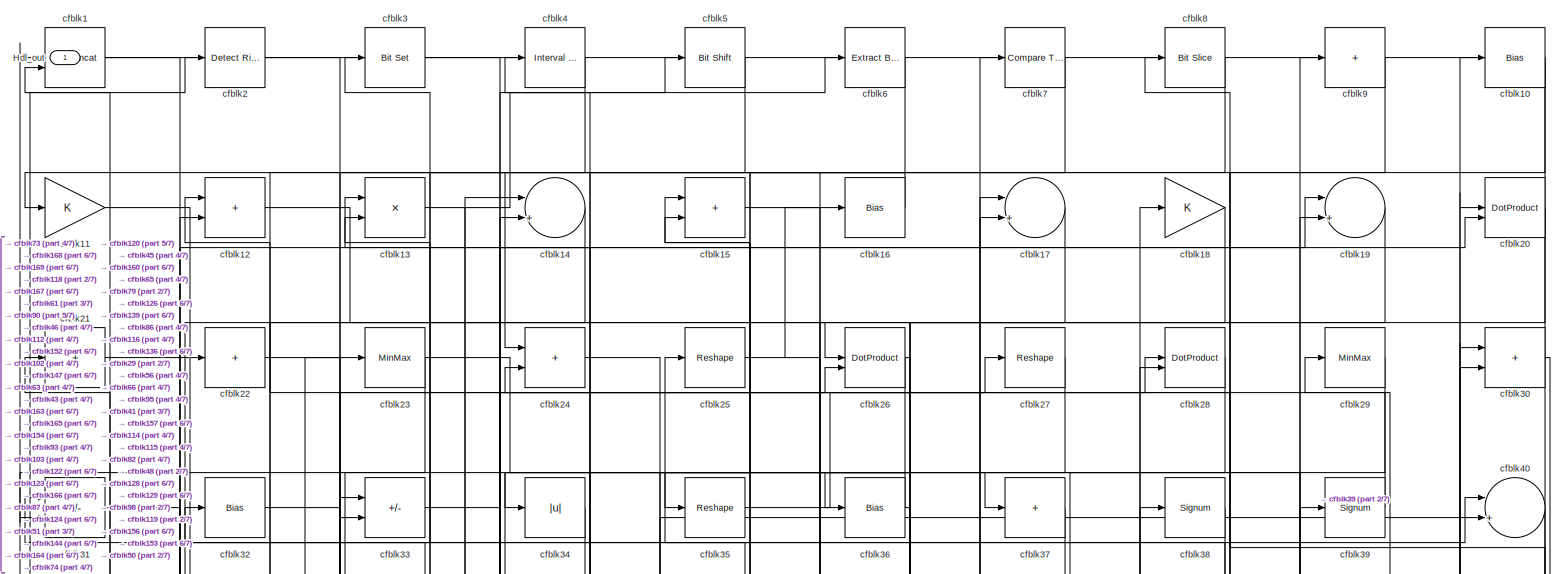
[diagram: root canvas - part 1/7, full width, top band]
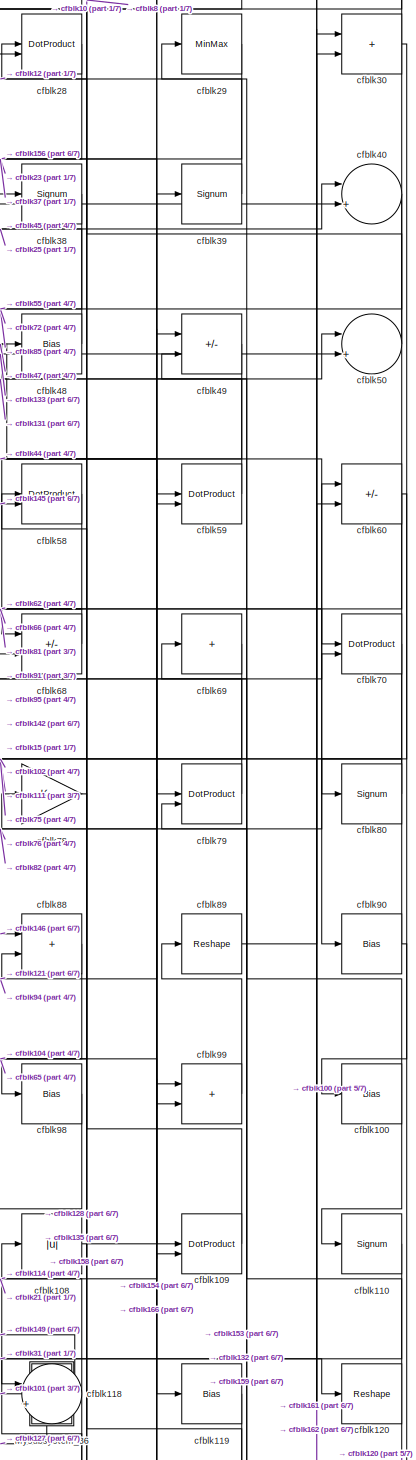
[diagram: root canvas - part 2/7, middle right region]
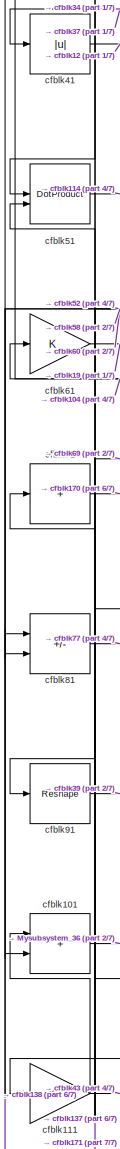
[diagram: root canvas - part 3/7, middle left region]
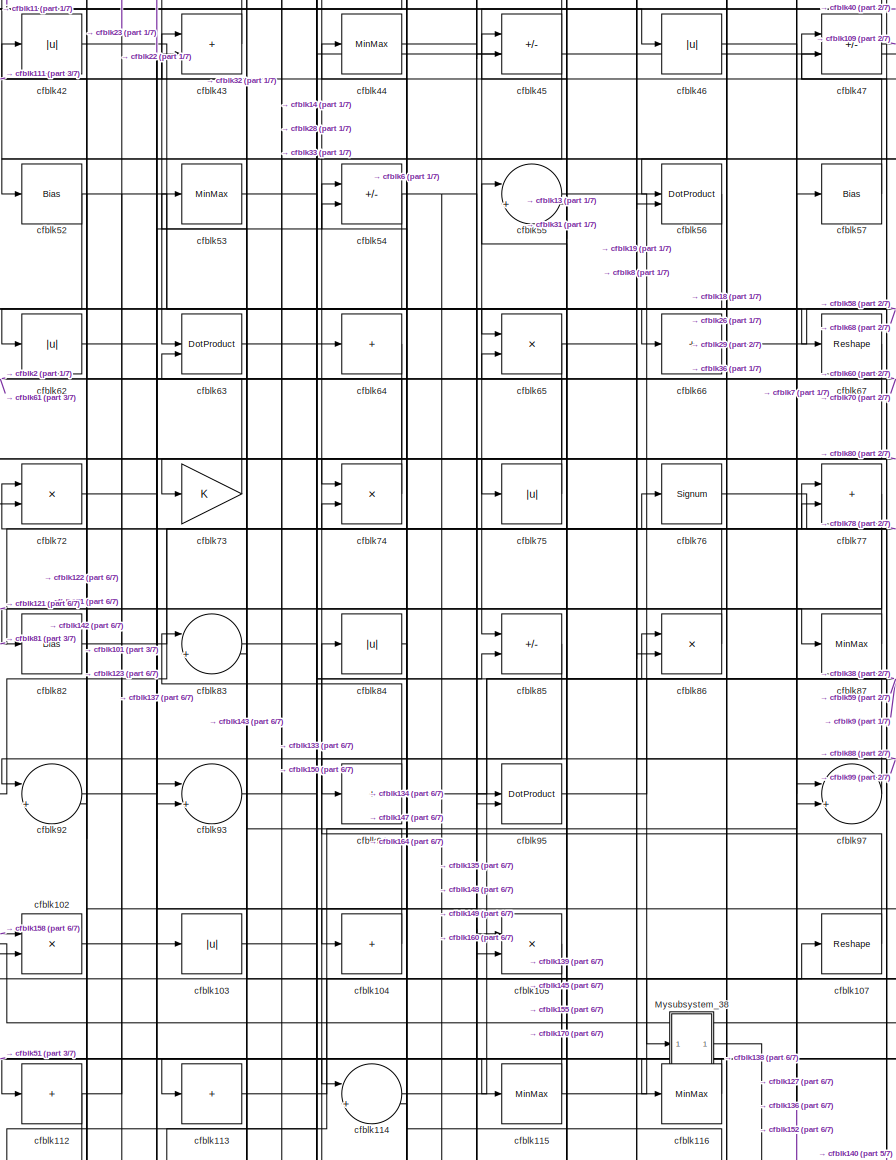
[diagram: root canvas - part 4/7, central region]
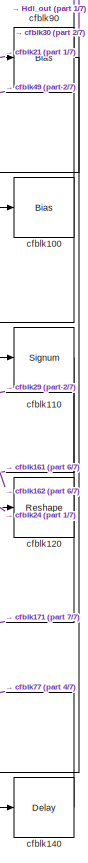
[diagram: root canvas - part 5/7, middle right region]
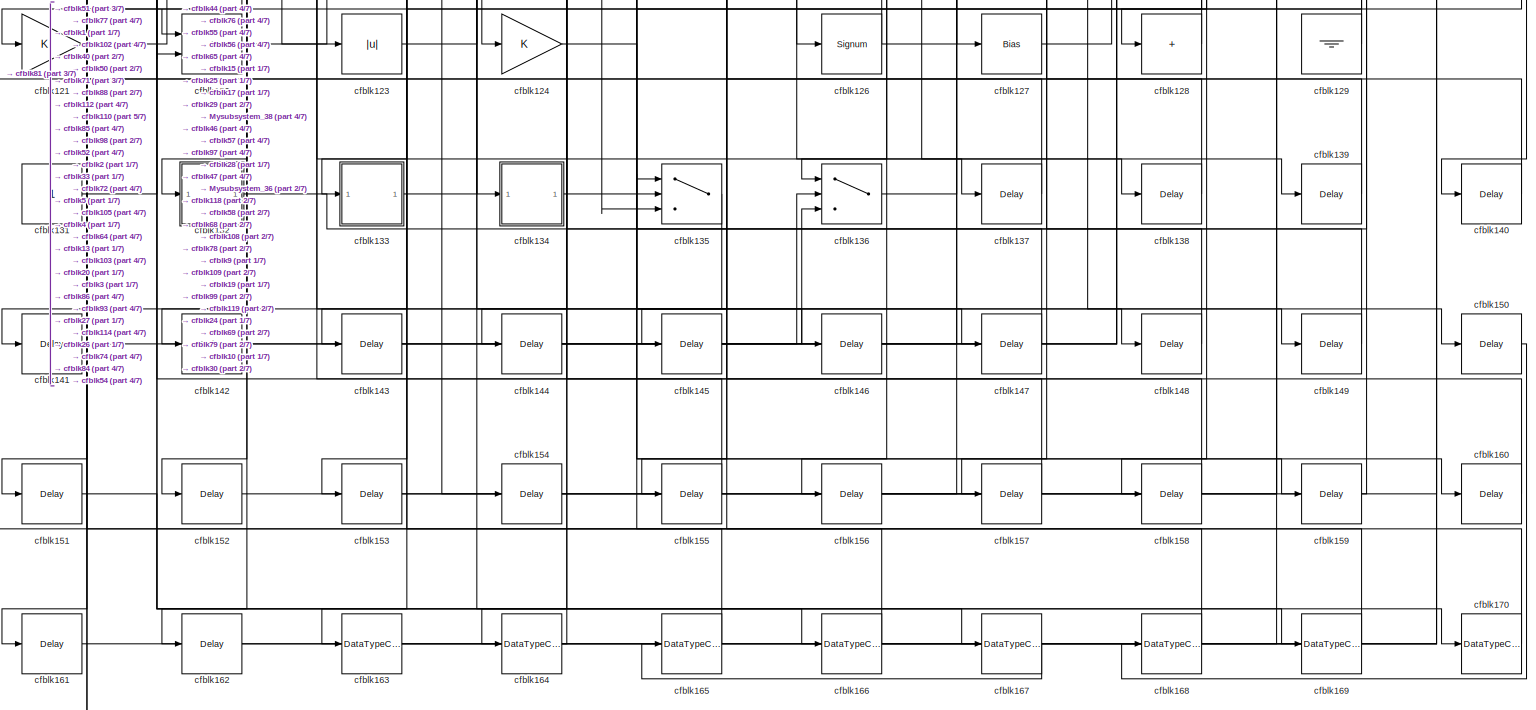
[diagram: root canvas - part 6/7, full width, bottom band]
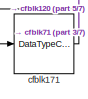
[diagram: root canvas - part 7/7, bottom left region]
MODEL slx_8a5f66f3ddb1
KIND model
CONFIG AbsTol = auto
CONFIG EnableMultiTasking = off
CONFIG FixedStep = auto
CONFIG MaxStep = auto
CONFIG MinStep = auto
CONFIG RelTol = 1e-3
CONFIG SampleTimeConstraint = Unconstrained
CONFIG SolverName = VariableStepAuto
CONFIG StartTime = 0.0
CONFIG StopTime = 10.0
BLOCK [Outport] Hdl_out
  OutDataTypeStr = uint8
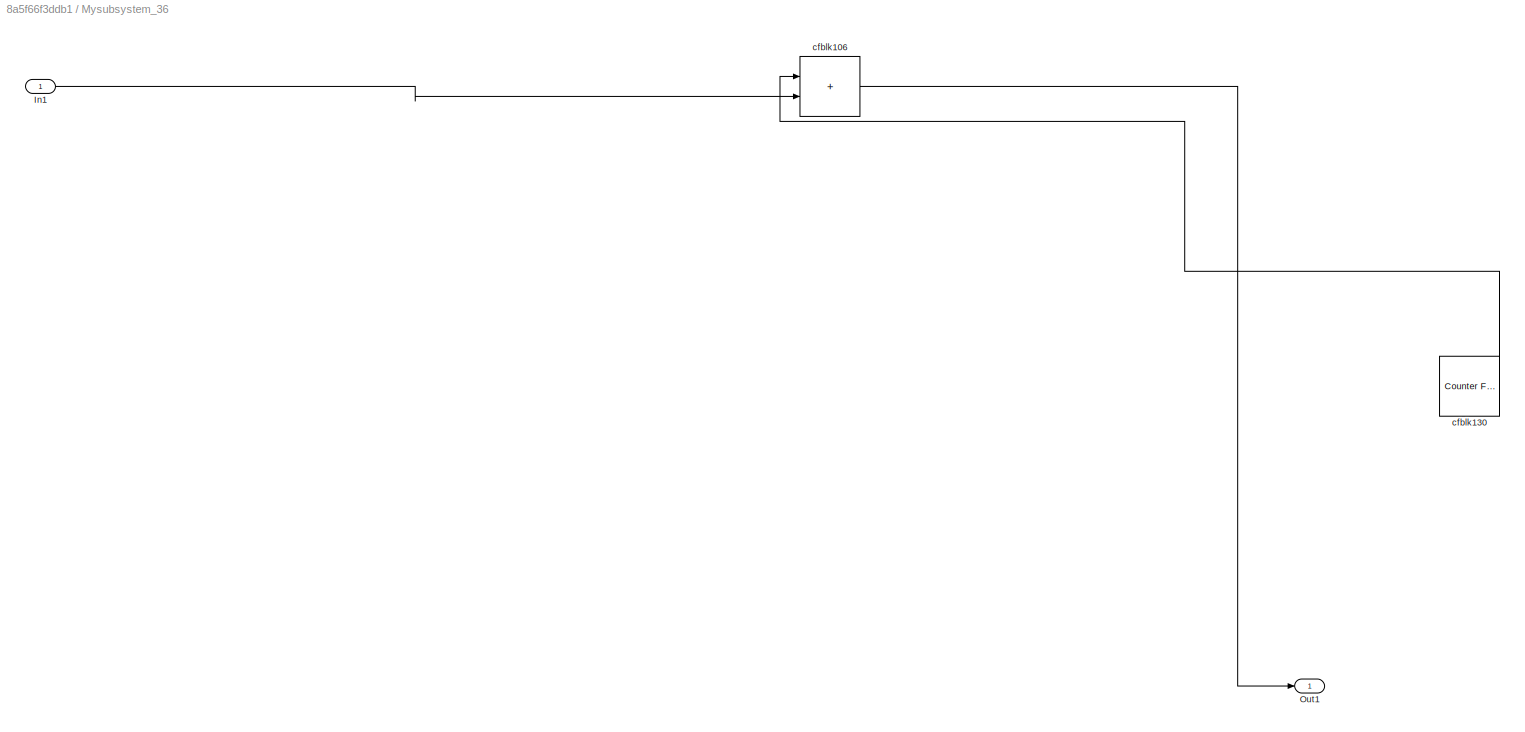
BLOCK [SubSystem] Mysubsystem_36
  RTWFcnName = Mysubsystem_36
  RTWFcnNameOpts = User specified
  RTWFileNameOpts = Use function name
  RTWSystemCode = Reusable function
  TreatAsAtomicUnit = on
BLOCK [Inport] Mysubsystem_36/In1
BLOCK [Outport] Mysubsystem_36/Out1
BLOCK [Sum] Mysubsystem_36/cfblk106
  IconShape = rectangular
BLOCK [Reference] Mysubsystem_36/cfblk130  REF=hdlsllib/Sources/Counter
Free-Running
  SourceBlock = hdlsllib/Sources/Counter\nFree-Running
  SourceType = Counter Free-Running
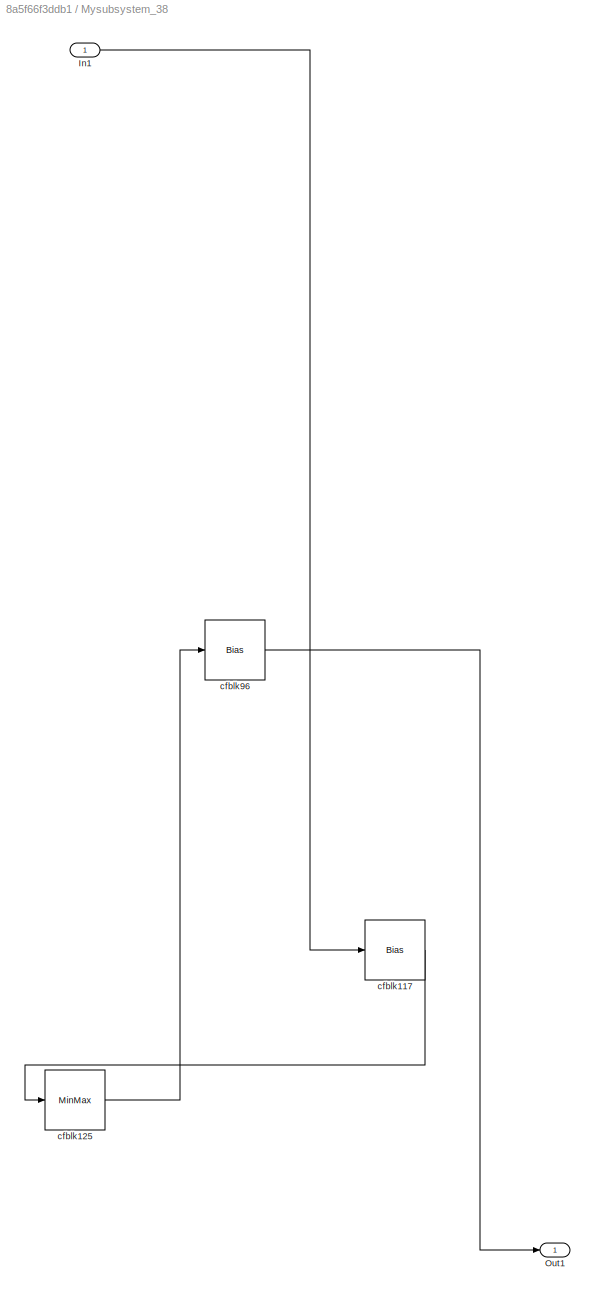
BLOCK [SubSystem] Mysubsystem_38
  RTWFcnName = Mysubsystem_38
  RTWFcnNameOpts = User specified
  RTWFileNameOpts = Use function name
  RTWSystemCode = Reusable function
  TreatAsAtomicUnit = on
BLOCK [Inport] Mysubsystem_38/In1
BLOCK [Outport] Mysubsystem_38/Out1
BLOCK [Bias] Mysubsystem_38/cfblk117
  Bias = 0.0
  SaturateOnIntegerOverflow = off
BLOCK [MinMax] Mysubsystem_38/cfblk125
BLOCK [Bias] Mysubsystem_38/cfblk96
  Bias = 0.0
  SaturateOnIntegerOverflow = off
BLOCK [Reference] cfblk1  REF=hdlsllib/Logic and Bit
Operations/Bit Concat
  SourceBlock = hdlsllib/Logic and Bit\nOperations/Bit Concat
  SourceType = Bit Concat
BLOCK [Bias] cfblk10
  Bias = 0.0
  SaturateOnIntegerOverflow = off
BLOCK [Bias] cfblk100
  Bias = 0.0
  SaturateOnIntegerOverflow = off
BLOCK [Sum] cfblk101
  IconShape = rectangular
  OutDataTypeStr = uint8
BLOCK [Product] cfblk102
  Inputs = */
  OutDataTypeStr = uint8
  RndMeth = Zero
  SaturateOnIntegerOverflow = on
BLOCK [Abs] cfblk103
  OutDataTypeStr = uint8
  SaturateOnIntegerOverflow = off
BLOCK [Sum] cfblk104
  IconShape = rectangular
  Inputs = +
  OutDataTypeStr = uint8
BLOCK [Product] cfblk105
  Inputs = */
  OutDataTypeStr = uint8
  RndMeth = Zero
  SaturateOnIntegerOverflow = on
BLOCK [Reshape] cfblk107
BLOCK [Abs] cfblk108
  OutDataTypeStr = uint8
  SaturateOnIntegerOverflow = off
BLOCK [DotProduct] cfblk109
  OutDataTypeStr = uint8
BLOCK [Gain] cfblk11
  OutDataTypeStr = uint8
BLOCK [Signum] cfblk110
BLOCK [Gain] cfblk111
  OutDataTypeStr = uint8
BLOCK [Sum] cfblk112
  IconShape = rectangular
  Inputs = +
  OutDataTypeStr = uint8
BLOCK [Sum] cfblk113
  IconShape = rectangular
  Inputs = +
  OutDataTypeStr = uint8
BLOCK [Sum] cfblk114
  Inputs = |++
  OutDataTypeStr = uint8
BLOCK [MinMax] cfblk115
  OutDataTypeStr = uint8
BLOCK [MinMax] cfblk116
  OutDataTypeStr = uint8
BLOCK [Sum] cfblk118
  Inputs = |++
  OutDataTypeStr = uint8
BLOCK [Bias] cfblk119
  Bias = 0.0
  SaturateOnIntegerOverflow = off
BLOCK [Sum] cfblk12
  IconShape = rectangular
  OutDataTypeStr = uint8
BLOCK [Reshape] cfblk120
BLOCK [Gain] cfblk121
  OutDataTypeStr = uint8
BLOCK [Sum] cfblk122
  IconShape = rectangular
  OutDataTypeStr = uint8
BLOCK [Abs] cfblk123
  OutDataTypeStr = uint8
  SaturateOnIntegerOverflow = off
BLOCK [Gain] cfblk124
  OutDataTypeStr = uint8
BLOCK [Signum] cfblk126
BLOCK [Bias] cfblk127
  Bias = 0.0
  SaturateOnIntegerOverflow = off
BLOCK [Sum] cfblk128
  IconShape = rectangular
  Inputs = +
  OutDataTypeStr = uint8
BLOCK [Ground] cfblk129
BLOCK [Product] cfblk13
  Inputs = */
  OutDataTypeStr = uint8
  RndMeth = Zero
  SaturateOnIntegerOverflow = on
BLOCK [Constant] cfblk131
  OutDataTypeStr = uint8
  SampleTime = -1
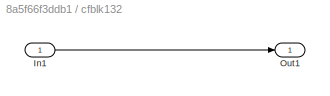
BLOCK [SubSystem] cfblk132
  LibrarySourceBlock = hdlsllib/Ports &\nSubsystems/Subsystem
BLOCK [Inport] cfblk132/In1
BLOCK [Outport] cfblk132/Out1
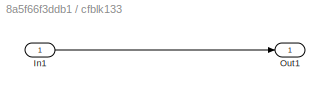
BLOCK [SubSystem] cfblk133
  LibrarySourceBlock = hdlsllib/Ports &\nSubsystems/Subsystem
BLOCK [Inport] cfblk133/In1
BLOCK [Outport] cfblk133/Out1
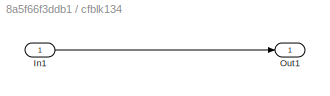
BLOCK [SubSystem] cfblk134
  LibrarySourceBlock = hdlsllib/Ports &\nSubsystems/Subsystem
BLOCK [Inport] cfblk134/In1
BLOCK [Outport] cfblk134/Out1
BLOCK [Switch] cfblk135
  InputSameDT = off
  OutDataTypeStr = uint8
  SaturateOnIntegerOverflow = off
BLOCK [Switch] cfblk136
  InputSameDT = off
  OutDataTypeStr = uint8
  SaturateOnIntegerOverflow = off
BLOCK [Delay] cfblk137
  InputPortMap = u0
  SampleTime = 1
BLOCK [Delay] cfblk138
  InputPortMap = u0
  SampleTime = 1
BLOCK [Delay] cfblk139
  InputPortMap = u0
  SampleTime = 1
BLOCK [Sum] cfblk14
  Inputs = |++
  OutDataTypeStr = uint8
BLOCK [Delay] cfblk140
  InputPortMap = u0
  SampleTime = 1
BLOCK [Delay] cfblk141
  InputPortMap = u0
  SampleTime = 1
BLOCK [Delay] cfblk142
  InputPortMap = u0
  SampleTime = 1
BLOCK [Delay] cfblk143
  InputPortMap = u0
  SampleTime = 1
BLOCK [Delay] cfblk144
  InputPortMap = u0
  SampleTime = 1
BLOCK [Delay] cfblk145
  InputPortMap = u0
  SampleTime = 1
BLOCK [Delay] cfblk146
  InputPortMap = u0
  SampleTime = 1
BLOCK [Delay] cfblk147
  InputPortMap = u0
  SampleTime = 1
BLOCK [Delay] cfblk148
  InputPortMap = u0
  SampleTime = 1
BLOCK [Delay] cfblk149
  InputPortMap = u0
  SampleTime = 1
BLOCK [Sum] cfblk15
  IconShape = rectangular
  OutDataTypeStr = uint8
BLOCK [Delay] cfblk150
  InputPortMap = u0
  SampleTime = 1
BLOCK [Delay] cfblk151
  InputPortMap = u0
  SampleTime = 1
BLOCK [Delay] cfblk152
  InputPortMap = u0
  SampleTime = 1
BLOCK [Delay] cfblk153
  InputPortMap = u0
  SampleTime = 1
BLOCK [Delay] cfblk154
  InputPortMap = u0
  SampleTime = 1
BLOCK [Delay] cfblk155
  InputPortMap = u0
  SampleTime = 1
BLOCK [Delay] cfblk156
  InputPortMap = u0
  SampleTime = 1
BLOCK [Delay] cfblk157
  InputPortMap = u0
  SampleTime = 1
BLOCK [Delay] cfblk158
  InputPortMap = u0
  SampleTime = 1
BLOCK [Delay] cfblk159
  InputPortMap = u0
  SampleTime = 1
BLOCK [Bias] cfblk16
  Bias = 0.0
  SaturateOnIntegerOverflow = off
BLOCK [Delay] cfblk160
  InputPortMap = u0
  SampleTime = 1
BLOCK [Delay] cfblk161
  InputPortMap = u0
  SampleTime = 1
BLOCK [Delay] cfblk162
  InputPortMap = u0
  SampleTime = 1
BLOCK [DataTypeConversion] cfblk163
  OutDataTypeStr = uint8
  RndMeth = Floor
  SaturateOnIntegerOverflow = off
BLOCK [DataTypeConversion] cfblk164
  OutDataTypeStr = uint8
  RndMeth = Floor
  SaturateOnIntegerOverflow = off
BLOCK [DataTypeConversion] cfblk165
  OutDataTypeStr = uint8
  RndMeth = Floor
  SaturateOnIntegerOverflow = off
BLOCK [DataTypeConversion] cfblk166
  OutDataTypeStr = uint8
  RndMeth = Floor
  SaturateOnIntegerOverflow = off
BLOCK [DataTypeConversion] cfblk167
  OutDataTypeStr = uint8
  RndMeth = Floor
  SaturateOnIntegerOverflow = off
BLOCK [DataTypeConversion] cfblk168
  OutDataTypeStr = uint8
  RndMeth = Floor
  SaturateOnIntegerOverflow = off
BLOCK [DataTypeConversion] cfblk169
  OutDataTypeStr = uint8
  RndMeth = Floor
  SaturateOnIntegerOverflow = off
BLOCK [Sum] cfblk17
  Inputs = |++
  OutDataTypeStr = uint8
BLOCK [DataTypeConversion] cfblk170
  OutDataTypeStr = uint8
  RndMeth = Floor
  SaturateOnIntegerOverflow = off
BLOCK [DataTypeConversion] cfblk171
  OutDataTypeStr = uint8
  RndMeth = Floor
  SaturateOnIntegerOverflow = off
BLOCK [Gain] cfblk18
  OutDataTypeStr = uint8
BLOCK [Sum] cfblk19
  Inputs = |++
  OutDataTypeStr = uint8
BLOCK [Reference] cfblk2  REF=hdlsllib/Logic and Bit
Operations/Detect Rise
Positive
  SourceBlock = hdlsllib/Logic and Bit\nOperations/Detect Rise\nPositive
  SourceType = Detect Rise Positive
BLOCK [DotProduct] cfblk20
  OutDataTypeStr = uint8
BLOCK [Sum] cfblk21
  IconShape = rectangular
  Inputs = +
  OutDataTypeStr = uint8
BLOCK [Sum] cfblk22
  IconShape = rectangular
  Inputs = +
  OutDataTypeStr = uint8
BLOCK [MinMax] cfblk23
  OutDataTypeStr = uint8
BLOCK [Sum] cfblk24
  IconShape = rectangular
  OutDataTypeStr = uint8
BLOCK [Reshape] cfblk25
BLOCK [DotProduct] cfblk26
  OutDataTypeStr = uint8
BLOCK [Reshape] cfblk27
BLOCK [DotProduct] cfblk28
  OutDataTypeStr = uint8
BLOCK [MinMax] cfblk29
  OutDataTypeStr = uint8
BLOCK [Reference] cfblk3  REF=simulink/Logic and Bit
Operations/Bit Set
  LibrarySourceBlock = hdlsllib/Logic and Bit\nOperations/Bit Set
  SourceBlock = simulink/Logic and Bit\nOperations/Bit Set
  SourceType = Bit Set
BLOCK [Sum] cfblk30
  IconShape = rectangular
  OutDataTypeStr = uint8
BLOCK [Sum] cfblk31
  IconShape = rectangular
  Inputs = +-
  OutDataTypeStr = uint8
BLOCK [Bias] cfblk32
  Bias = 0.0
  SaturateOnIntegerOverflow = off
BLOCK [Sum] cfblk33
  IconShape = rectangular
  Inputs = +-
  OutDataTypeStr = uint8
BLOCK [Abs] cfblk34
  OutDataTypeStr = uint8
  SaturateOnIntegerOverflow = off
BLOCK [Reshape] cfblk35
BLOCK [Bias] cfblk36
  Bias = 0.0
  SaturateOnIntegerOverflow = off
BLOCK [Sum] cfblk37
  IconShape = rectangular
  Inputs = +
  OutDataTypeStr = uint8
BLOCK [Signum] cfblk38
BLOCK [Signum] cfblk39
BLOCK [Reference] cfblk4  REF=hdlsllib/Logic and Bit
Operations/Interval Test
  SourceBlock = hdlsllib/Logic and Bit\nOperations/Interval Test
  SourceType = Interval Test
BLOCK [Sum] cfblk40
  Inputs = |++
  OutDataTypeStr = uint8
BLOCK [Abs] cfblk41
  OutDataTypeStr = uint8
  SaturateOnIntegerOverflow = off
BLOCK [Abs] cfblk42
  OutDataTypeStr = uint8
  SaturateOnIntegerOverflow = off
BLOCK [Sum] cfblk43
  IconShape = rectangular
  OutDataTypeStr = uint8
BLOCK [MinMax] cfblk44
  OutDataTypeStr = uint8
BLOCK [Sum] cfblk45
  IconShape = rectangular
  Inputs = +-
  OutDataTypeStr = uint8
BLOCK [Abs] cfblk46
  OutDataTypeStr = uint8
  SaturateOnIntegerOverflow = off
BLOCK [Sum] cfblk47
  IconShape = rectangular
  Inputs = +-
  OutDataTypeStr = uint8
BLOCK [Bias] cfblk48
  Bias = 0.0
  SaturateOnIntegerOverflow = off
BLOCK [Sum] cfblk49
  IconShape = rectangular
  Inputs = +-
  OutDataTypeStr = uint8
BLOCK [Reference] cfblk5  REF=hdlsllib/Logic and Bit
Operations/Bit Shift
  SourceBlock = hdlsllib/Logic and Bit\nOperations/Bit Shift
  SourceType = Bit Shift
BLOCK [Sum] cfblk50
  Inputs = |++
  OutDataTypeStr = uint8
BLOCK [DotProduct] cfblk51
  OutDataTypeStr = uint8
BLOCK [Bias] cfblk52
  Bias = 0.0
  SaturateOnIntegerOverflow = off
BLOCK [MinMax] cfblk53
  OutDataTypeStr = uint8
BLOCK [Sum] cfblk54
  IconShape = rectangular
  Inputs = +-
  OutDataTypeStr = uint8
BLOCK [Sum] cfblk55
  Inputs = |++
  OutDataTypeStr = uint8
BLOCK [DotProduct] cfblk56
  OutDataTypeStr = uint8
BLOCK [Bias] cfblk57
  Bias = 0.0
  SaturateOnIntegerOverflow = off
BLOCK [DotProduct] cfblk58
  OutDataTypeStr = uint8
BLOCK [DotProduct] cfblk59
  OutDataTypeStr = uint8
BLOCK [Reference] cfblk6  REF=simulink/Logic and Bit
Operations/Extract Bits
  LibrarySourceBlock = hdlsllib/Logic and Bit\nOperations/Extract Bits
  SourceBlock = simulink/Logic and Bit\nOperations/Extract Bits
  SourceType = Extract Bits
BLOCK [Sum] cfblk60
  IconShape = rectangular
  Inputs = +-
  OutDataTypeStr = uint8
BLOCK [Gain] cfblk61
  OutDataTypeStr = uint8
BLOCK [Abs] cfblk62
  OutDataTypeStr = uint8
  SaturateOnIntegerOverflow = off
BLOCK [DotProduct] cfblk63
  OutDataTypeStr = uint8
BLOCK [Sum] cfblk64
  IconShape = rectangular
  Inputs = +
  OutDataTypeStr = uint8
BLOCK [Product] cfblk65
  Inputs = */
  OutDataTypeStr = uint8
  RndMeth = Zero
  SaturateOnIntegerOverflow = on
BLOCK [Sum] cfblk66
  IconShape = rectangular
  Inputs = +
  OutDataTypeStr = uint8
BLOCK [Reshape] cfblk67
BLOCK [Sum] cfblk68
  IconShape = rectangular
  Inputs = +-
  OutDataTypeStr = uint8
BLOCK [Sum] cfblk69
  IconShape = rectangular
  Inputs = +
  OutDataTypeStr = uint8
BLOCK [Reference] cfblk7  REF=hdlsllib/Logic and Bit
Operations/Compare
To Constant
  SourceBlock = hdlsllib/Logic and Bit\nOperations/Compare\nTo Constant
  SourceType = Compare To Constant
BLOCK [DotProduct] cfblk70
  OutDataTypeStr = uint8
BLOCK [Sum] cfblk71
  IconShape = rectangular
  Inputs = +
  OutDataTypeStr = uint8
BLOCK [Product] cfblk72
  Inputs = */
  OutDataTypeStr = uint8
  RndMeth = Zero
  SaturateOnIntegerOverflow = on
BLOCK [Gain] cfblk73
  OutDataTypeStr = uint8
BLOCK [Product] cfblk74
  Inputs = */
  OutDataTypeStr = uint8
  RndMeth = Zero
  SaturateOnIntegerOverflow = on
BLOCK [Abs] cfblk75
  OutDataTypeStr = uint8
  SaturateOnIntegerOverflow = off
BLOCK [Signum] cfblk76
BLOCK [Sum] cfblk77
  IconShape = rectangular
  OutDataTypeStr = uint8
BLOCK [Gain] cfblk78
  OutDataTypeStr = uint8
BLOCK [DotProduct] cfblk79
  OutDataTypeStr = uint8
BLOCK [Reference] cfblk8  REF=hdlsllib/Logic and Bit
Operations/Bit Slice
  SourceBlock = hdlsllib/Logic and Bit\nOperations/Bit Slice
  SourceType = Bit Slice
BLOCK [Signum] cfblk80
BLOCK [Sum] cfblk81
  IconShape = rectangular
  Inputs = +-
  OutDataTypeStr = uint8
BLOCK [Bias] cfblk82
  Bias = 0.0
  SaturateOnIntegerOverflow = off
BLOCK [Sum] cfblk83
  Inputs = |++
  OutDataTypeStr = uint8
BLOCK [Abs] cfblk84
  OutDataTypeStr = uint8
  SaturateOnIntegerOverflow = off
BLOCK [Sum] cfblk85
  IconShape = rectangular
  Inputs = +-
  OutDataTypeStr = uint8
BLOCK [Product] cfblk86
  Inputs = */
  OutDataTypeStr = uint8
  RndMeth = Zero
  SaturateOnIntegerOverflow = on
BLOCK [MinMax] cfblk87
  OutDataTypeStr = uint8
BLOCK [Sum] cfblk88
  IconShape = rectangular
  OutDataTypeStr = uint8
BLOCK [Reshape] cfblk89
BLOCK [Sum] cfblk9
  IconShape = rectangular
  Inputs = +
  OutDataTypeStr = uint8
BLOCK [Bias] cfblk90
  Bias = 0.0
  SaturateOnIntegerOverflow = off
BLOCK [Reshape] cfblk91
BLOCK [Sum] cfblk92
  Inputs = |++
  OutDataTypeStr = uint8
BLOCK [Sum] cfblk93
  Inputs = |++
  OutDataTypeStr = uint8
BLOCK [Sum] cfblk94
  IconShape = rectangular
  Inputs = +
  OutDataTypeStr = uint8
BLOCK [DotProduct] cfblk95
  OutDataTypeStr = uint8
BLOCK [Sum] cfblk97
  Inputs = |++
  OutDataTypeStr = uint8
BLOCK [Bias] cfblk98
  Bias = 0.0
  SaturateOnIntegerOverflow = off
BLOCK [Sum] cfblk99
  IconShape = rectangular
  OutDataTypeStr = uint8
LINE Mysubsystem_36/In1:1 -> Mysubsystem_36/cfblk106:2
LINE Mysubsystem_36/cfblk106:1 -> Mysubsystem_36/Out1:1
LINE Mysubsystem_36/cfblk130:1 -> Mysubsystem_36/cfblk106:1
LINE Mysubsystem_36:1 -> cfblk149:1
LINE Mysubsystem_38/In1:1 -> Mysubsystem_38/cfblk117:1
LINE Mysubsystem_38/cfblk117:1 -> Mysubsystem_38/cfblk125:1
LINE Mysubsystem_38/cfblk125:1 -> Mysubsystem_38/cfblk96:1
LINE Mysubsystem_38/cfblk96:1 -> Mysubsystem_38/Out1:1
LINE Mysubsystem_38:1 -> cfblk138:1
NET cfblk100:1 -> cfblk110:1, cfblk49:2
LINE cfblk101:1 -> Mysubsystem_36:1
NET cfblk102:1 -> cfblk103:1, cfblk26:2
NET cfblk103:1 -> cfblk134:1, cfblk28:1
LINE cfblk104:1 -> cfblk61:1
NET cfblk105:1 -> cfblk122:2, cfblk133:1
LINE cfblk107:1 -> cfblk84:1
LINE cfblk108:1 -> cfblk49:1
LINE cfblk109:1 -> cfblk58:1
NET cfblk10:1 -> cfblk24:1, cfblk33:2, cfblk98:1
NET cfblk110:1 -> cfblk161:1, cfblk162:1
NET cfblk111:1 -> cfblk101:1, cfblk43:2
NET cfblk112:1 -> cfblk122:1, cfblk151:1, cfblk23:1
LINE cfblk113:1 -> cfblk107:1
NET cfblk114:1 -> cfblk38:1, cfblk9:1
NET cfblk115:1 -> cfblk18:1, cfblk53:1
LINE cfblk116:1 -> cfblk113:1
NET cfblk118:1 -> cfblk135:2, cfblk21:1
LINE cfblk119:1 -> cfblk153:1
LINE cfblk11:1 -> cfblk46:1
NET cfblk120:1 -> cfblk171:1, cfblk29:1
LINE cfblk121:1 -> cfblk88:2
LINE cfblk122:1 -> cfblk5:1
LINE cfblk123:1 -> cfblk20:2
LINE cfblk124:1 -> cfblk146:1
NET cfblk126:1 -> cfblk13:2, cfblk17:1
LINE cfblk127:1 -> cfblk118:2
LINE cfblk128:1 -> cfblk108:1
LINE cfblk129:1 -> cfblk24:2
LINE cfblk12:1 -> cfblk26:1
NET cfblk131:1 -> cfblk40:1, cfblk50:1
LINE cfblk132/In1:1 -> cfblk132/Out1:1
LINE cfblk132:1 -> cfblk69:1
LINE cfblk133/In1:1 -> cfblk133/Out1:1
NET cfblk133:1 -> cfblk50:2, cfblk86:1
LINE cfblk134/In1:1 -> cfblk134/Out1:1
NET cfblk134:1 -> cfblk159:1, cfblk74:2, cfblk76:1
LINE cfblk135:1 -> cfblk141:1
LINE cfblk136:1 -> cfblk57:1
LINE cfblk137:1 -> cfblk51:2
LINE cfblk138:1 -> cfblk81:1
LINE cfblk139:1 -> cfblk65:2
NET cfblk13:1 -> cfblk154:1, cfblk6:1
LINE cfblk140:1 -> cfblk77:2
LINE cfblk141:1 -> cfblk136:2
LINE cfblk142:1 -> cfblk68:2
LINE cfblk143:1 -> cfblk136:3
LINE cfblk144:1 -> cfblk17:2
LINE cfblk145:1 -> cfblk58:2
LINE cfblk146:1 -> cfblk88:1
LINE cfblk147:1 -> cfblk54:2
LINE cfblk148:1 -> cfblk47:2
LINE cfblk149:1 -> cfblk105:1
LINE cfblk14:1 -> cfblk112:1
LINE cfblk150:1 -> cfblk168:1
LINE cfblk151:1 -> cfblk169:1
LINE cfblk152:1 -> cfblk97:2
LINE cfblk153:1 -> cfblk20:1
LINE cfblk154:1 -> cfblk99:1
LINE cfblk155:1 -> cfblk114:2
LINE cfblk156:1 -> cfblk19:2
LINE cfblk157:1 -> cfblk33:1
LINE cfblk158:1 -> cfblk102:1
LINE cfblk159:1 -> cfblk79:2
LINE cfblk15:1 -> cfblk126:1
LINE cfblk160:1 -> cfblk15:2
LINE cfblk161:1 -> cfblk30:1
LINE cfblk162:1 -> cfblk30:2
LINE cfblk163:1 -> cfblk10:1
LINE cfblk164:1 -> cfblk4:1
LINE cfblk165:1 -> cfblk3:1
NET cfblk166:1 -> cfblk109:2, cfblk135:1, cfblk79:1
LINE cfblk167:1 -> cfblk165:1
LINE cfblk168:1 -> cfblk1:1
LINE cfblk169:1 -> cfblk1:2
LINE cfblk16:1 -> cfblk11:1
LINE cfblk170:1 -> cfblk55:1
LINE cfblk171:1 -> cfblk71:1
LINE cfblk17:1 -> cfblk136:1
LINE cfblk18:1 -> cfblk66:1
NET cfblk19:1 -> cfblk36:1, cfblk86:2
LINE cfblk1:1 -> cfblk167:1
LINE cfblk20:1 -> cfblk22:1
LINE cfblk21:1 -> cfblk90:1
LINE cfblk22:1 -> cfblk93:1
NET cfblk23:1 -> cfblk119:1, cfblk31:2
LINE cfblk24:1 -> cfblk120:1
NET cfblk25:1 -> cfblk139:1, cfblk16:1
NET cfblk26:1 -> cfblk144:1, cfblk56:1, cfblk63:1
LINE cfblk27:1 -> cfblk124:1
LINE cfblk28:1 -> cfblk157:1
NET cfblk29:1 -> cfblk156:1, cfblk37:1, cfblk45:2
LINE cfblk2:1 -> cfblk147:1
LINE cfblk30:1 -> cfblk100:1
LINE cfblk31:1 -> cfblk118:1
LINE cfblk32:1 -> cfblk93:2
LINE cfblk33:1 -> cfblk87:1
LINE cfblk34:1 -> cfblk51:1
LINE cfblk35:1 -> cfblk27:1
NET cfblk36:1 -> cfblk116:1, cfblk34:1
LINE cfblk37:1 -> cfblk41:1
NET cfblk38:1 -> cfblk55:2, cfblk72:2
LINE cfblk39:1 -> cfblk12:1
LINE cfblk3:1 -> cfblk166:1
LINE cfblk40:1 -> cfblk85:1
LINE cfblk41:1 -> cfblk12:2
LINE cfblk42:1 -> cfblk97:1
LINE cfblk43:1 -> cfblk32:1
NET cfblk44:1 -> cfblk160:1, cfblk40:2, cfblk59:2
NET cfblk45:1 -> cfblk13:1, cfblk31:1, cfblk52:1
LINE cfblk46:1 -> cfblk127:1
LINE cfblk47:1 -> cfblk109:1
LINE cfblk48:1 -> cfblk25:1
LINE cfblk49:1 -> cfblk68:1
LINE cfblk4:1 -> cfblk163:1
LINE cfblk50:1 -> cfblk8:1
LINE cfblk51:1 -> cfblk114:1
NET cfblk52:1 -> cfblk101:2, cfblk123:1, cfblk92:1, cfblk95:1
LINE cfblk53:1 -> cfblk67:1
NET cfblk54:1 -> cfblk135:3, cfblk148:1, cfblk73:1
LINE cfblk55:1 -> Mysubsystem_38:1
LINE cfblk56:1 -> cfblk145:1
LINE cfblk57:1 -> cfblk47:1
NET cfblk58:1 -> cfblk81:2, cfblk95:2
LINE cfblk59:1 -> cfblk48:1
LINE cfblk5:1 -> cfblk152:1
NET cfblk60:1 -> cfblk80:1, cfblk91:1
LINE cfblk61:1 -> cfblk19:1
LINE cfblk62:1 -> cfblk105:2
LINE cfblk63:1 -> cfblk64:1
NET cfblk64:1 -> cfblk143:1, cfblk83:2
NET cfblk65:1 -> cfblk155:1, cfblk94:1, cfblk99:2
LINE cfblk66:1 -> cfblk70:1
NET cfblk67:1 -> cfblk63:2, cfblk92:2
LINE cfblk68:1 -> cfblk62:1
LINE cfblk69:1 -> cfblk111:1
LINE cfblk6:1 -> cfblk74:1
LINE cfblk70:1 -> cfblk102:2
LINE cfblk71:1 -> cfblk170:1
LINE cfblk72:1 -> cfblk137:1
LINE cfblk73:1 -> cfblk2:1
LINE cfblk74:1 -> cfblk43:1
LINE cfblk75:1 -> cfblk42:1
LINE cfblk76:1 -> cfblk78:1
LINE cfblk77:1 -> cfblk121:1
LINE cfblk78:1 -> cfblk158:1
LINE cfblk79:1 -> cfblk15:1
LINE cfblk7:1 -> cfblk35:1
LINE cfblk80:1 -> cfblk75:1
LINE cfblk81:1 -> cfblk77:1
NET cfblk82:1 -> cfblk115:1, cfblk28:2, cfblk60:1, cfblk70:2
LINE cfblk83:1 -> cfblk85:2
LINE cfblk84:1 -> cfblk164:1
LINE cfblk85:1 -> cfblk142:1
LINE cfblk86:1 -> cfblk72:1
NET cfblk87:1 -> cfblk44:1, cfblk82:1
LINE cfblk88:1 -> cfblk104:1
LINE cfblk89:1 -> cfblk60:2
NET cfblk8:1 -> cfblk56:2, cfblk65:1
NET cfblk90:1 -> Hdl_out:1, cfblk140:1
LINE cfblk91:1 -> cfblk39:1
LINE cfblk92:1 -> cfblk54:1
NET cfblk93:1 -> cfblk14:1, cfblk14:2, cfblk150:1
NET cfblk94:1 -> cfblk59:1, cfblk83:1
LINE cfblk95:1 -> cfblk7:1
LINE cfblk97:1 -> cfblk45:1
LINE cfblk98:1 -> cfblk132:1
LINE cfblk99:1 -> cfblk89:1
LINE cfblk9:1 -> cfblk128:1
note: NET lines group one-source signal fan-out (src -> all destinations, sorted); 1:1 wires keep LINE
